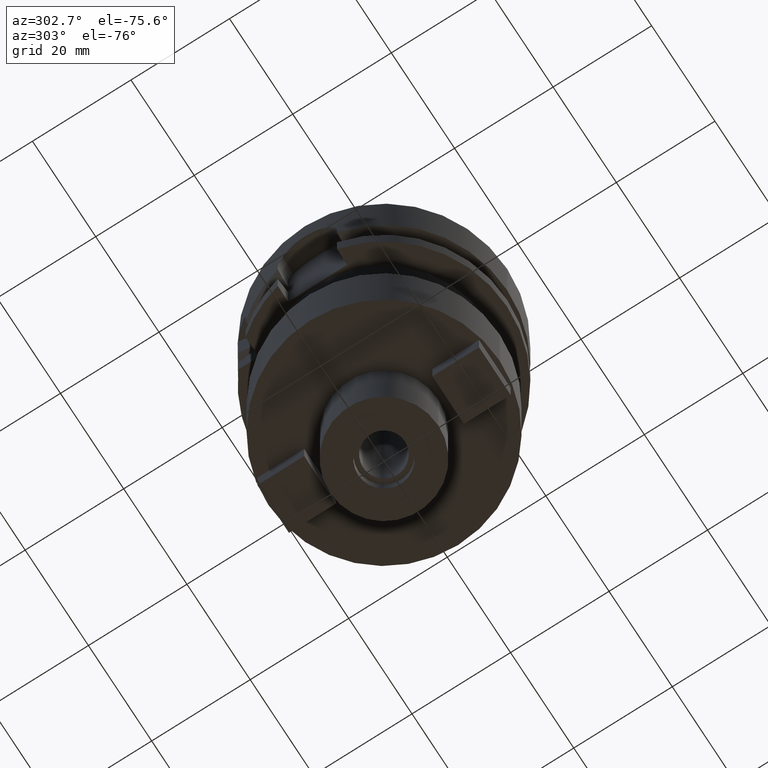
[diagram: clean part render]
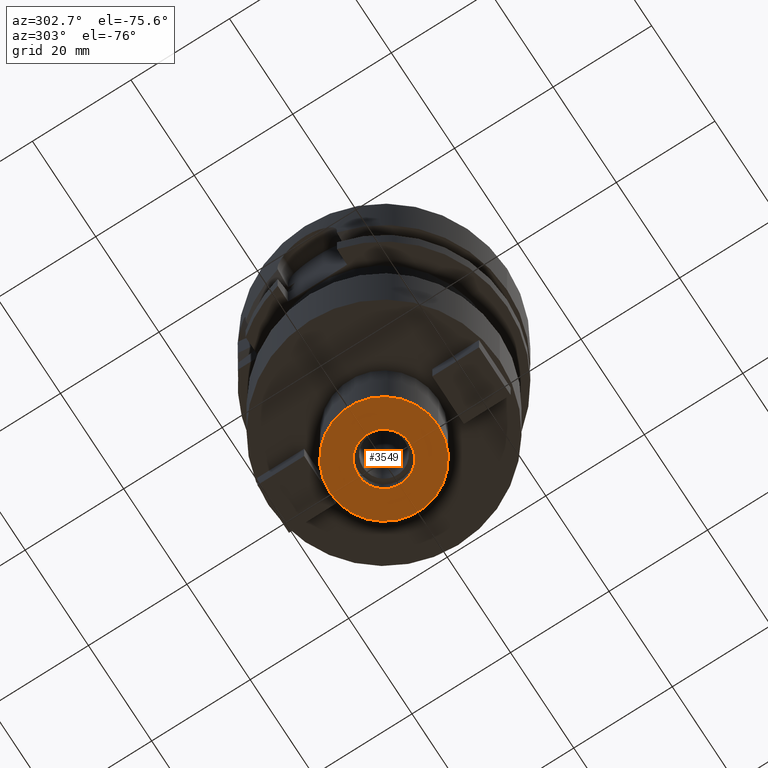
[diagram: same view with one face highlighted and labeled with its STEP entity id]
A machine part, auxiliary view. The second image highlights one B-rep face of the part: STEP entity #3549.
In plain terms, the highlighted planar face has unit normal (0, 0, 1).
Its self-contained STEP definition (entity closure, byte-faithful):
#1029=CARTESIAN_POINT('',(0.E0,0.E0,-7.8E1));
#1030=DIRECTION('',(0.E0,0.E0,1.E0));
#1031=DIRECTION('',(0.E0,-1.E0,0.E0));
#1032=AXIS2_PLACEMENT_3D('',#1029,#1030,#1031);
#1037=CARTESIAN_POINT('',(0.E0,0.E0,-7.8E1));
#1038=DIRECTION('',(0.E0,0.E0,1.E0));
#1039=DIRECTION('',(0.E0,1.E0,0.E0));
#1040=AXIS2_PLACEMENT_3D('',#1037,#1038,#1039);
#1045=CARTESIAN_POINT('',(0.E0,0.E0,-7.8E1));
#1046=DIRECTION('',(0.E0,0.E0,-1.E0));
#1047=DIRECTION('',(0.E0,-1.E0,0.E0));
#1048=AXIS2_PLACEMENT_3D('',#1045,#1046,#1047);
#1053=CARTESIAN_POINT('',(0.E0,0.E0,-7.8E1));
#1054=DIRECTION('',(0.E0,0.E0,-1.E0));
#1055=DIRECTION('',(0.E0,1.E0,0.E0));
#1056=AXIS2_PLACEMENT_3D('',#1053,#1054,#1055);
#2590=CARTESIAN_POINT('',(0.E0,5.25E0,-7.8E1));
#2591=VERTEX_POINT('',#2590);
#2592=CARTESIAN_POINT('',(0.E0,-5.25E0,-7.8E1));
#2593=VERTEX_POINT('',#2592);
#2594=CARTESIAN_POINT('',(0.E0,-1.1E1,-7.8E1));
#2595=CARTESIAN_POINT('',(0.E0,1.1E1,-7.8E1));
#2596=VERTEX_POINT('',#2594);
#2597=VERTEX_POINT('',#2595);
#3534=CARTESIAN_POINT('',(0.E0,0.E0,-7.8E1));
#3535=DIRECTION('',(0.E0,0.E0,1.E0));
#3536=DIRECTION('',(0.E0,1.E0,0.E0));
#3537=AXIS2_PLACEMENT_3D('',#3534,#3535,#3536);
#3538=PLANE('',#3537);
#3540=ORIENTED_EDGE('',*,*,#3539,.T.);
#3542=ORIENTED_EDGE('',*,*,#3541,.T.);
#3543=EDGE_LOOP('',(#3540,#3542));
#3544=FACE_OUTER_BOUND('',#3543,.F.);
#3545=ORIENTED_EDGE('',*,*,#3527,.T.);
#3546=ORIENTED_EDGE('',*,*,#3516,.T.);
#3547=EDGE_LOOP('',(#3545,#3546));
#3548=FACE_BOUND('',#3547,.F.);
#1033=CIRCLE('',#1032,1.1E1);
#1041=CIRCLE('',#1040,1.1E1);
#1049=CIRCLE('',#1048,5.25E0);
#1057=CIRCLE('',#1056,5.25E0);
#3516=EDGE_CURVE('',#2591,#2593,#1057,.T.);
#3527=EDGE_CURVE('',#2593,#2591,#1049,.T.);
#3539=EDGE_CURVE('',#2596,#2597,#1033,.T.);
#3541=EDGE_CURVE('',#2597,#2596,#1041,.T.);
#3549=ADVANCED_FACE('',(#3544,#3548),#3538,.F.);